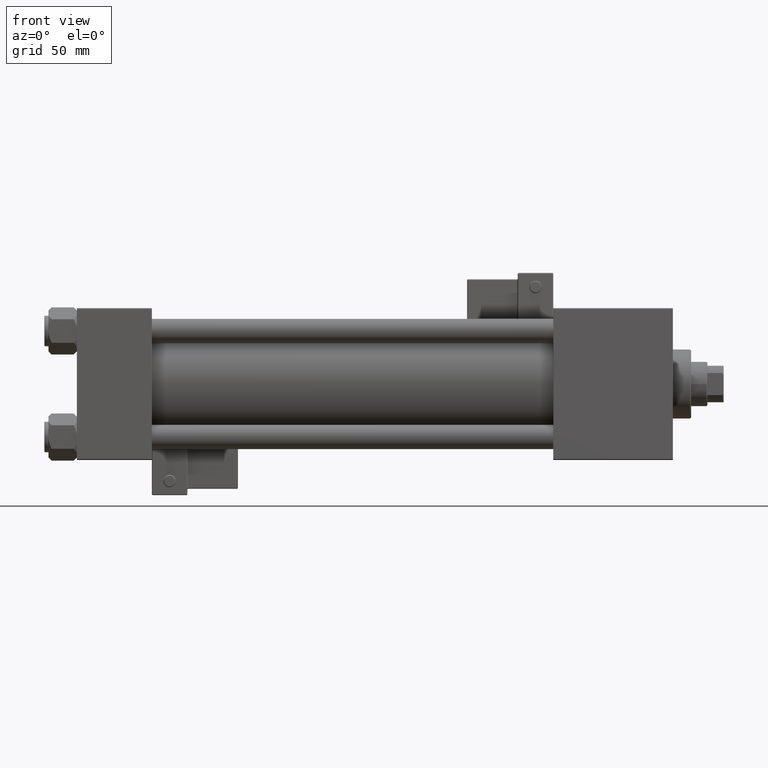
[diagram: clean part render]
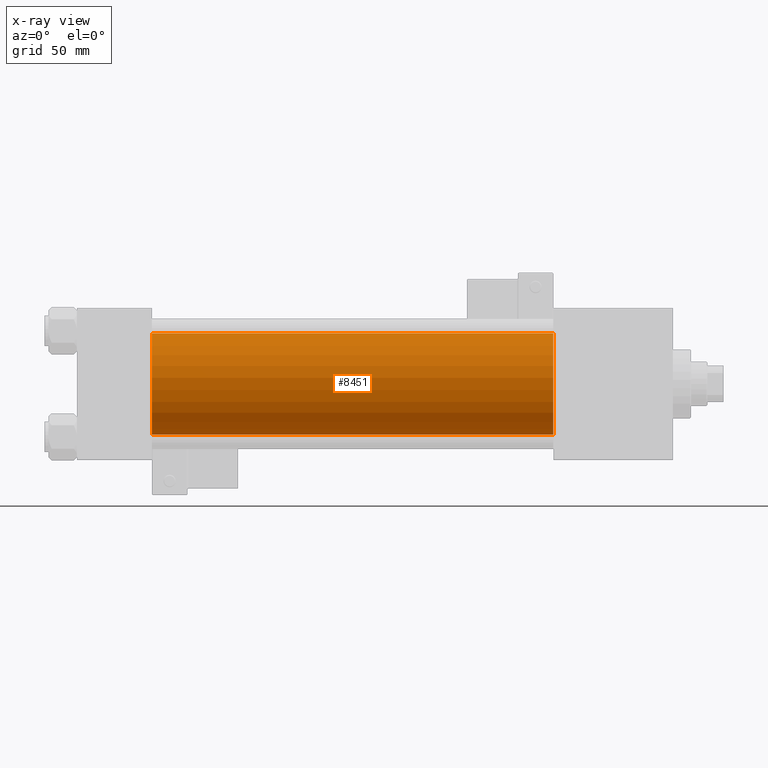
[diagram: x-ray — body ghosted, one internal face saturated and labeled with its STEP entity id]
A machine part, front view, then the same camera in x-ray: the body is ghosted and one INTERNAL B-rep face — a face not visible from any outside direction — is saturated and labeled: STEP entity #8451.
In plain terms, the highlighted cylindrical surface (partial cylindrical patch) has radius 25 mm, axis along (-1, -0, -0).
Its self-contained STEP definition (entity closure, byte-faithful):
#1070 = ORIENTED_EDGE ( 'NONE', *, *, #34673, .F. ) ;
#1079 = DIRECTION ( 'NONE',  ( -1.000000000000000000, -0.000000000000000000, -0.000000000000000000 ) ) ;
#2191 = DIRECTION ( 'NONE',  ( -1.000000000000000000, -0.000000000000000000, -0.000000000000000000 ) ) ;
#2361 = VERTEX_POINT ( 'NONE', #18209 ) ;
#6272 = CYLINDRICAL_SURFACE ( 'NONE', #34555, 25.00000000000000000 ) ;
#7138 = VERTEX_POINT ( 'NONE', #44139 ) ;
#8451 = ADVANCED_FACE ( 'NONE', ( #46150 ), #6272, .F. ) ;
#10176 = EDGE_CURVE ( 'NONE', #7138, #27936, #32166, .T. ) ;
#10520 = DIRECTION ( 'NONE',  ( -1.000000000000000000, -0.000000000000000000, -0.000000000000000000 ) ) ;
#13501 = ORIENTED_EDGE ( 'NONE', *, *, #38734, .F. ) ;
#13538 = EDGE_CURVE ( 'NONE', #23259, #7138, #21225, .T. ) ;
#13889 = DIRECTION ( 'NONE',  ( 0.000000000000000000, 0.000000000000000000, -1.000000000000000000 ) ) ;
#14756 = AXIS2_PLACEMENT_3D ( 'NONE', #50297, #47089, #13889 ) ;
#15783 = ORIENTED_EDGE ( 'NONE', *, *, #13538, .T. ) ;
#18098 = CARTESIAN_POINT ( 'NONE',  ( 235.0000000000000284, -2.602085213965210642E-15, 0.000000000000000000 ) ) ;
#18209 = CARTESIAN_POINT ( 'NONE',  ( 37.00000000000000000, -2.602085213965210642E-15, 25.00000000000000000 ) ) ;
#18989 = ORIENTED_EDGE ( 'NONE', *, *, #10176, .T. ) ;
#21225 = CIRCLE ( 'NONE', #27986, 25.00000000000000000 ) ;
#22096 = DIRECTION ( 'NONE',  ( 1.000000000000000000, 0.000000000000000000, 0.000000000000000000 ) ) ;
#22770 = CARTESIAN_POINT ( 'NONE',  ( 235.0000000000000284, -2.602085213965210642E-15, 0.000000000000000000 ) ) ;
#23259 = VERTEX_POINT ( 'NONE', #34948 ) ;
#24324 = CARTESIAN_POINT ( 'NONE',  ( 37.00000000000000000, 4.595317839031724996E-16, -25.00000000000000000 ) ) ;
#27936 = VERTEX_POINT ( 'NONE', #24324 ) ;
#27986 = AXIS2_PLACEMENT_3D ( 'NONE', #18098, #22096, #38293 ) ;
#32166 = LINE ( 'NONE', #32981, #44789 ) ;
#32981 = CARTESIAN_POINT ( 'NONE',  ( 235.0000000000000284, 4.595317839031724996E-16, -25.00000000000000000 ) ) ;
#34555 = AXIS2_PLACEMENT_3D ( 'NONE', #22770, #10520, #38962 ) ;
#34673 = EDGE_CURVE ( 'NONE', #23259, #2361, #46577, .T. ) ;
#34948 = CARTESIAN_POINT ( 'NONE',  ( 235.0000000000000284, -2.602085213965210642E-15, 25.00000000000000000 ) ) ;
#38293 = DIRECTION ( 'NONE',  ( 0.000000000000000000, 0.000000000000000000, -1.000000000000000000 ) ) ;
#38340 = CARTESIAN_POINT ( 'NONE',  ( 235.0000000000000284, -2.602085213965210642E-15, 25.00000000000000000 ) ) ;
#38734 = EDGE_CURVE ( 'NONE', #2361, #27936, #49549, .T. ) ;
#38962 = DIRECTION ( 'NONE',  ( 0.000000000000000000, 0.000000000000000000, 1.000000000000000000 ) ) ;
#44139 = CARTESIAN_POINT ( 'NONE',  ( 235.0000000000000284, 4.595317839031724996E-16, -25.00000000000000000 ) ) ;
#44789 = VECTOR ( 'NONE', #1079, 1000.000000000000000 ) ;
#46150 = FACE_OUTER_BOUND ( 'NONE', #50017, .T. ) ;
#46577 = LINE ( 'NONE', #38340, #47720 ) ;
#47089 = DIRECTION ( 'NONE',  ( 1.000000000000000000, 0.000000000000000000, 0.000000000000000000 ) ) ;
#47720 = VECTOR ( 'NONE', #2191, 1000.000000000000000 ) ;
#49549 = CIRCLE ( 'NONE', #14756, 25.00000000000000000 ) ;
#50017 = EDGE_LOOP ( 'NONE', ( #15783, #18989, #13501, #1070 ) ) ;
#50297 = CARTESIAN_POINT ( 'NONE',  ( 37.00000000000000000, -2.602085213965210642E-15, 0.000000000000000000 ) ) ;